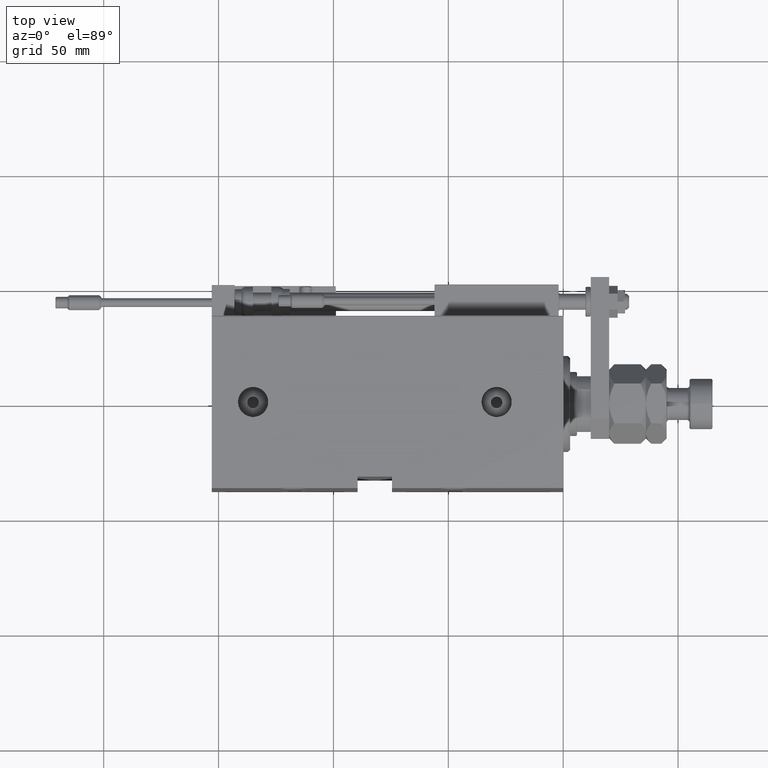
[diagram: clean part render]
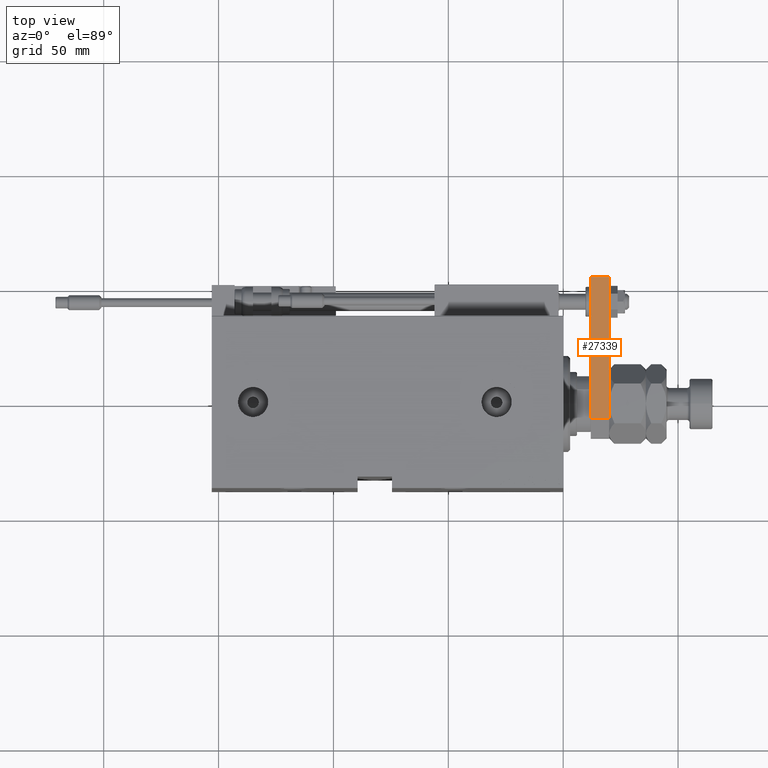
[diagram: same view with one face highlighted and labeled with its STEP entity id]
A machine part, top view. The second image highlights one B-rep face of the part: STEP entity #27339.
In plain terms, the highlighted planar face has unit normal (-0, -0, -1).
Its self-contained STEP definition (entity closure, byte-faithful):
#1114 = VECTOR ( 'NONE', #2419, 1000.000000000000000 ) ;
#2356 = EDGE_CURVE ( 'NONE', #7868, #31612, #5372, .T. ) ;
#2419 = DIRECTION ( 'NONE',  ( -0.000000000000000000, -0.000000000000000000, -1.000000000000000000 ) ) ;
#2493 = EDGE_CURVE ( 'NONE', #45466, #31612, #10997, .T. ) ;
#2664 = ORIENTED_EDGE ( 'NONE', *, *, #2356, .F. ) ;
#4894 = ORIENTED_EDGE ( 'NONE', *, *, #31884, .T. ) ;
#5372 = LINE ( 'NONE', #30676, #49954 ) ;
#6459 = LINE ( 'NONE', #39334, #1114 ) ;
#7868 = VERTEX_POINT ( 'NONE', #44441 ) ;
#10997 = LINE ( 'NONE', #18821, #13811 ) ;
#11144 = VECTOR ( 'NONE', #37268, 1000.000000000000000 ) ;
#13128 = EDGE_CURVE ( 'NONE', #7868, #43736, #6459, .T. ) ;
#13811 = VECTOR ( 'NONE', #31223, 1000.000000000000000 ) ;
#16139 = AXIS2_PLACEMENT_3D ( 'NONE', #53042, #19096, #24202 ) ;
#16781 = CARTESIAN_POINT ( 'NONE',  ( -14.99999999999999822, 70.00000000000000000, 0.000000000000000000 ) ) ;
#18821 = CARTESIAN_POINT ( 'NONE',  ( -15.00000000000000355, 8.500000000000028422, 8.000000000000000000 ) ) ;
#19096 = DIRECTION ( 'NONE',  ( 1.000000000000000000, -7.434529182757744162E-17, 0.000000000000000000 ) ) ;
#19477 = EDGE_LOOP ( 'NONE', ( #4894, #43932, #2664, #20879 ) ) ;
#20760 = CARTESIAN_POINT ( 'NONE',  ( -14.99999999999999822, 70.00000000000000000, 0.000000000000000000 ) ) ;
#20879 = ORIENTED_EDGE ( 'NONE', *, *, #13128, .T. ) ;
#24202 = DIRECTION ( 'NONE',  ( 7.434529182757744162E-17, 1.000000000000000000, 0.000000000000000000 ) ) ;
#27339 = ADVANCED_FACE ( 'NONE', ( #48474 ), #40113, .F. ) ;
#30676 = CARTESIAN_POINT ( 'NONE',  ( -14.99999999999999822, 70.00000000000000000, 8.000000000000000000 ) ) ;
#31223 = DIRECTION ( 'NONE',  ( 0.000000000000000000, 0.000000000000000000, 1.000000000000000000 ) ) ;
#31612 = VERTEX_POINT ( 'NONE', #39532 ) ;
#31884 = EDGE_CURVE ( 'NONE', #43736, #45466, #45371, .T. ) ;
#34467 = DIRECTION ( 'NONE',  ( -7.434529182757744162E-17, -1.000000000000000000, 0.000000000000000000 ) ) ;
#37268 = DIRECTION ( 'NONE',  ( -7.434529182757744162E-17, -1.000000000000000000, 0.000000000000000000 ) ) ;
#39334 = CARTESIAN_POINT ( 'NONE',  ( -14.99999999999999822, 70.00000000000000000, 8.000000000000000000 ) ) ;
#39532 = CARTESIAN_POINT ( 'NONE',  ( -15.00000000000000355, 8.500000000000028422, 8.000000000000000000 ) ) ;
#40113 = PLANE ( 'NONE',  #16139 ) ;
#43736 = VERTEX_POINT ( 'NONE', #20760 ) ;
#43932 = ORIENTED_EDGE ( 'NONE', *, *, #2493, .T. ) ;
#44441 = CARTESIAN_POINT ( 'NONE',  ( -14.99999999999999822, 70.00000000000000000, 8.000000000000000000 ) ) ;
#45371 = LINE ( 'NONE', #16781, #11144 ) ;
#45466 = VERTEX_POINT ( 'NONE', #47309 ) ;
#47309 = CARTESIAN_POINT ( 'NONE',  ( -15.00000000000000355, 8.500000000000028422, 0.000000000000000000 ) ) ;
#48474 = FACE_OUTER_BOUND ( 'NONE', #19477, .T. ) ;
#49954 = VECTOR ( 'NONE', #34467, 1000.000000000000000 ) ;
#53042 = CARTESIAN_POINT ( 'NONE',  ( -14.99999999999999822, 70.00000000000000000, 8.000000000000000000 ) ) ;